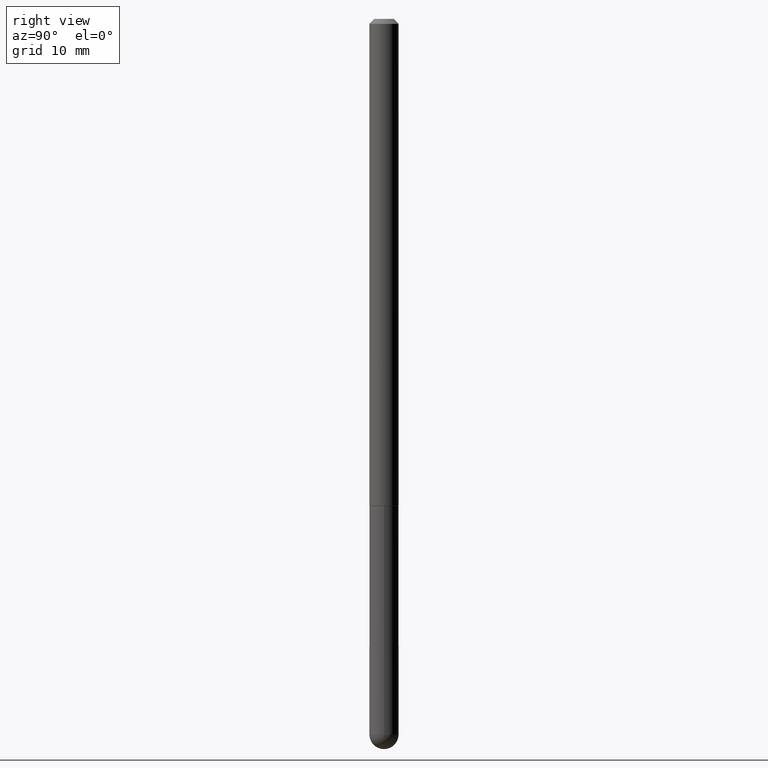
[diagram: clean part render]
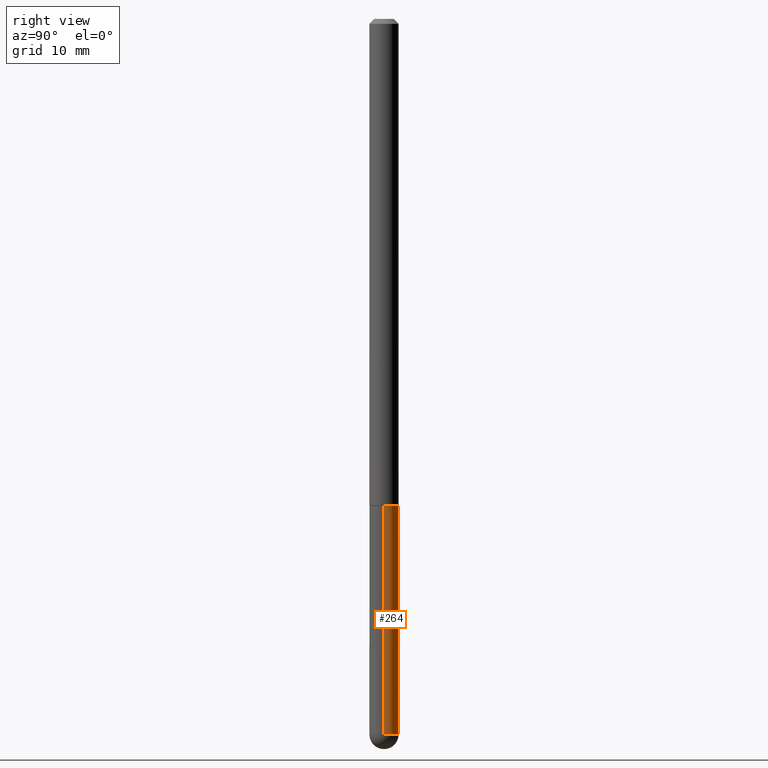
[diagram: same view with one face highlighted and labeled with its STEP entity id]
A machine part, right view. The second image highlights one B-rep face of the part: STEP entity #264.
In plain terms, the highlighted cylindrical surface (edge-blend (fillet) strip) has radius 1.4999 mm, axis along (-0, 0, 1).
Its self-contained STEP definition (entity closure, byte-faithful):
#8 = VERTEX_POINT ( 'NONE', #44 ) ;
#11 = VERTEX_POINT ( 'NONE', #263 ) ;
#17 = CARTESIAN_POINT ( 'NONE',  ( -0.05905000000000001914, -8.068652084428701697E-15, -2.893749999999999822 ) ) ;
#28 = EDGE_CURVE ( 'NONE', #331, #332, #380, .T. ) ;
#42 = DIRECTION ( 'NONE',  ( 1.000000000000000000, -6.982962677686270655E-15, 0.000000000000000000 ) ) ;
#44 = CARTESIAN_POINT ( 'NONE',  ( -0.05905000000000001914, -8.068652084428701697E-15, -1.968499999999999694 ) ) ;
#51 = DIRECTION ( 'NONE',  ( -2.445468806185136597E-29, 3.491481338843145583E-15, 1.000000000000000000 ) ) ;
#53 = DIRECTION ( 'NONE',  ( -2.445468806185136877E-29, 3.491481338843145188E-15, 1.000000000000000000 ) ) ;
#81 = CARTESIAN_POINT ( 'NONE',  ( 7.076575357898237682E-29, -1.010347412427735067E-14, -2.893749999999999822 ) ) ;
#85 = DIRECTION ( 'NONE',  ( -2.445468806185136877E-29, 3.491481338843145188E-15, 1.000000000000000000 ) ) ;
#86 = DIRECTION ( 'NONE',  ( -2.445468806185136597E-29, 3.491481338843145583E-15, 1.000000000000000000 ) ) ;
#97 = AXIS2_PLACEMENT_3D ( 'NONE', #241, #51, #121 ) ;
#98 = EDGE_CURVE ( 'NONE', #138, #11, #168, .T. ) ;
#102 = CARTESIAN_POINT ( 'NONE',  ( 0.05905000000000001914, -8.900571516012416899E-15, -2.893749999999999822 ) ) ;
#112 = CARTESIAN_POINT ( 'NONE',  ( 0.05905000000000001914, -4.123439461173741806E-16, 2.879382386107500921E-30 ) ) ;
#116 = LINE ( 'NONE', #308, #314 ) ;
#119 = EDGE_CURVE ( 'NONE', #11, #8, #122, .T. ) ;
#121 = DIRECTION ( 'NONE',  ( 1.000000000000000000, -6.982962677686266711E-15, 4.876176775795935793E-29 ) ) ;
#122 = CIRCLE ( 'NONE', #131, 0.05905000000000001914 ) ;
#131 = AXIS2_PLACEMENT_3D ( 'NONE', #260, #165, #393 ) ;
#136 = ORIENTED_EDGE ( 'NONE', *, *, #288, .T. ) ;
#138 = VERTEX_POINT ( 'NONE', #102 ) ;
#165 = DIRECTION ( 'NONE',  ( -2.445468806185136597E-29, 3.491481338843145583E-15, 1.000000000000000000 ) ) ;
#168 = LINE ( 'NONE', #112, #251 ) ;
#200 = ORIENTED_EDGE ( 'NONE', *, *, #258, .T. ) ;
#216 = AXIS2_PLACEMENT_3D ( 'NONE', #81, #86, #307 ) ;
#219 = CARTESIAN_POINT ( 'NONE',  ( 7.076575357898237682E-29, -1.010347412427735067E-14, -2.893749999999999822 ) ) ;
#235 = ORIENTED_EDGE ( 'NONE', *, *, #28, .T. ) ;
#241 = CARTESIAN_POINT ( 'NONE',  ( 0.000000000000000000, 0.000000000000000000, 0.000000000000000000 ) ) ;
#242 = AXIS2_PLACEMENT_3D ( 'NONE', #219, #324, #42 ) ;
#251 = VECTOR ( 'NONE', #53, 39.37007874015748143 ) ;
#254 = CIRCLE ( 'NONE', #242, 0.05905000000000001914 ) ;
#258 = EDGE_CURVE ( 'NONE', #138, #331, #254, .T. ) ;
#260 = CARTESIAN_POINT ( 'NONE',  ( 4.813905344975440714E-29, -6.872981015512730918E-15, -1.968499999999999694 ) ) ;
#263 = CARTESIAN_POINT ( 'NONE',  ( 0.05905000000000001914, -7.285324961630105839E-15, -1.968499999999999694 ) ) ;
#264 = ADVANCED_FACE ( 'NONE', ( #359 ), #303, .T. ) ;
#267 = ORIENTED_EDGE ( 'NONE', *, *, #119, .F. ) ;
#288 = EDGE_CURVE ( 'NONE', #332, #8, #116, .T. ) ;
#294 = EDGE_LOOP ( 'NONE', ( #235, #136, #267, #401, #200 ) ) ;
#301 = CARTESIAN_POINT ( 'NONE',  ( 4.123439461174440441E-16, 0.05904999999998979815, -2.893749999999999822 ) ) ;
#303 = CYLINDRICAL_SURFACE ( 'NONE', #97, 0.05905000000000001914 ) ;
#307 = DIRECTION ( 'NONE',  ( 1.000000000000000000, -6.982962677686270655E-15, 0.000000000000000000 ) ) ;
#308 = CARTESIAN_POINT ( 'NONE',  ( -0.05905000000000001914, 4.195754854663392958E-16, -2.904631170795522943E-30 ) ) ;
#314 = VECTOR ( 'NONE', #85, 39.37007874015748143 ) ;
#324 = DIRECTION ( 'NONE',  ( -2.445468806185136597E-29, 3.491481338843145583E-15, 1.000000000000000000 ) ) ;
#331 = VERTEX_POINT ( 'NONE', #301 ) ;
#332 = VERTEX_POINT ( 'NONE', #17 ) ;
#359 = FACE_OUTER_BOUND ( 'NONE', #294, .T. ) ;
#380 = CIRCLE ( 'NONE', #216, 0.05905000000000001914 ) ;
#393 = DIRECTION ( 'NONE',  ( 1.000000000000000000, -6.982962677686270655E-15, 0.000000000000000000 ) ) ;
#401 = ORIENTED_EDGE ( 'NONE', *, *, #98, .F. ) ;